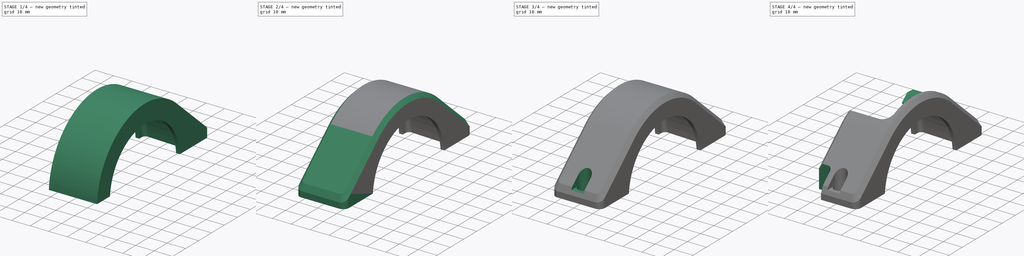
[diagram: build sequence overview — one tinted view per stage of 4, left to right]
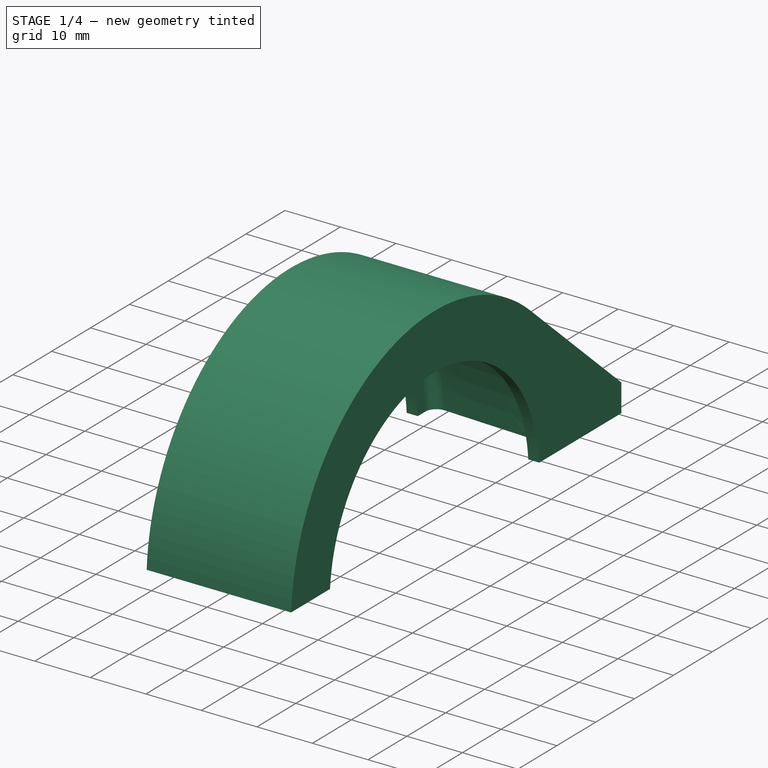
[diagram: stage 1 of 4 — iso view after this stage's code; geometry added in this stage tinted green]
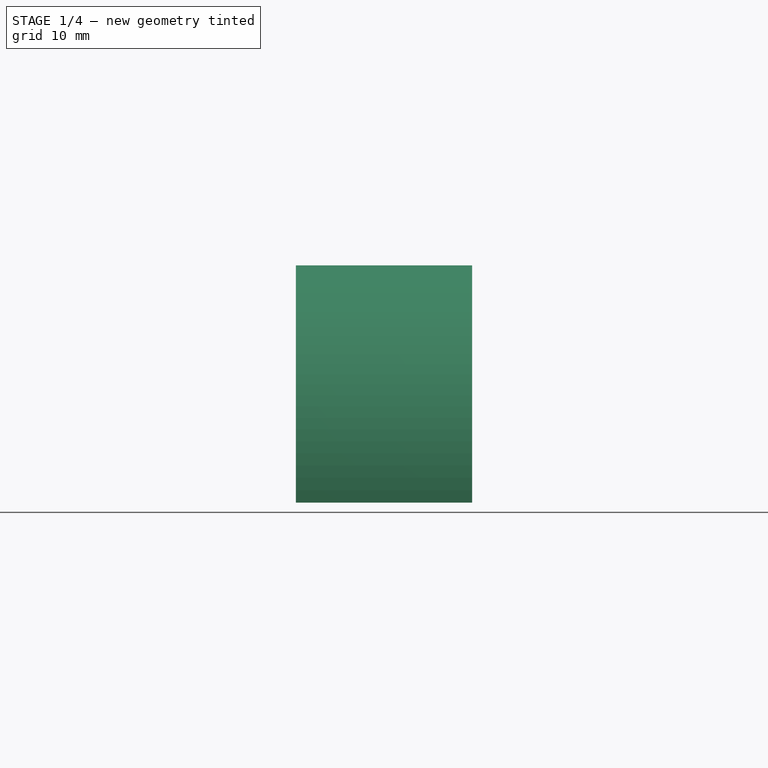
[diagram: stage 1 of 4 — front view after this stage's code; geometry added in this stage tinted green]
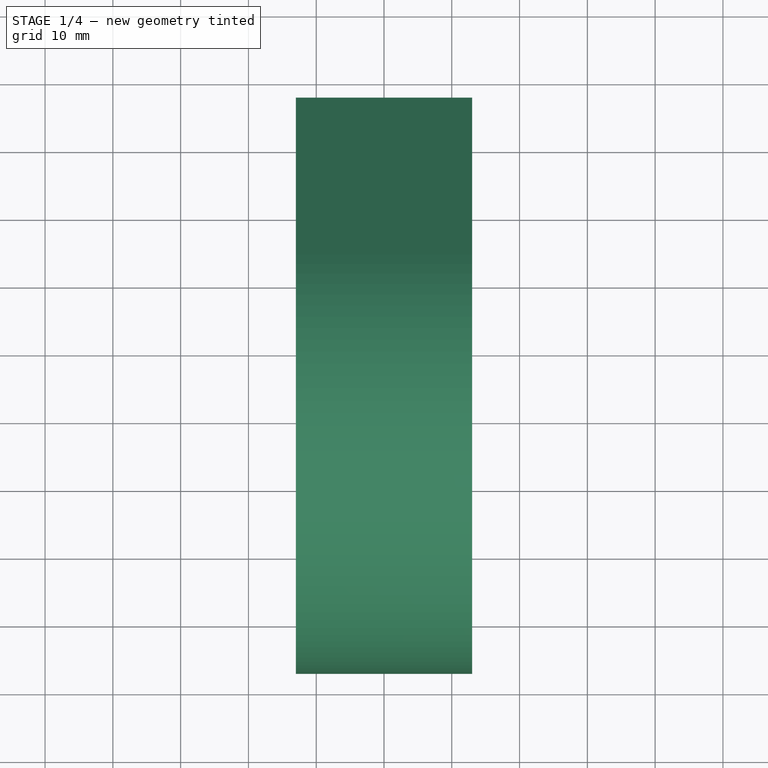
[diagram: stage 1 of 4 — top view after this stage's code; geometry added in this stage tinted green]
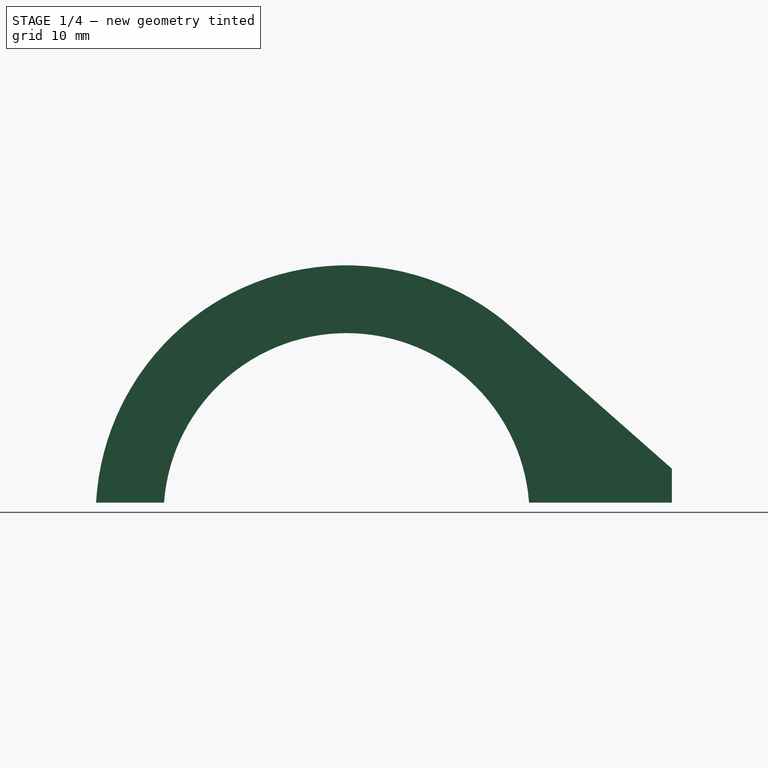
[diagram: stage 1 of 4 — right view after this stage's code; geometry added in this stage tinted green]
FCSTD DOCUMENT  (FreeCAD 1.0R39285 (Git))
Label: LowerPart
Comment: # 2025-11-12 09:51:29: read from None
License: All rights reserved
LicenseURL: https://en.wikipedia.org/wiki/All_rights_reserved
objects: Sketcher::SketchObject×8, PartDesign::Pocket×4, PartDesign::Fillet×2, PartDesign::Mirrored×2, Spreadsheet::Sheet×1, PartDesign::Revolution×1, PartDesign::Pad×1, PartDesign::Chamfer×1, PartDesign::Hole×1, PartDesign::Body×1
note: 51 computed .brp shape members not serialized (recipe doc carries the construction recipe); baked Part::Feature solids carry a one-line shape summary decoded from their .brp
EXTERNAL_REF file=MainDimensions.FCStd obj=Spreadsheet

FEATURE [Spreadsheet::Sheet] Parameters
  cells = A1='Parameter; B1='Value; C1='Fromula; D1='Tolerance; E1='Comment; A2='Outer_Diameter; B2(Outer_Diameter)=96; C2='96mm; A3='d0; B3(d0_)=66; C3='66mm; A4='d1; B4(d1_)=68; C4='68mm; A5='d10; B5(d10_)=4; C5='4mm; A6='d11; B6(d11_)=2; C6='2mm; A7='d15; B7(d15_)=180; C7='180°; A8='d16; B8(d16_)=26; C8='26mm; A9='d2; B9(d2_)=22; C9='22mm; A10='d3; B10(d3_)=2; C10='2mm; A11='d31; B11(d31_)=3; C11='3mm; A12='d33; B12(d33_)=2; C12='2mm; A13='d34; B13(d34_)=0; C13='0°; A14='d36; B14(d36_)=48; C14='48mm; A15='d37; B15(d37_)=5; C15='5mm; A16='d38; B16(d38_)=0; C16='0°; A17='d39; B17(d39_)=3.4; C17='3.4mm; A18='d4; B18(d4_)=6; C18='6mm; A19='d40; B19(d40_)=6; C19='6mm; A20='d41; B20(d41_)=6.5; C20='6.5mm; A21='d42; B21(d42_)=3.4; C21='3.4mm; A22='d43; B22(d43_)=82; C22='82°; A23='d44; B23(d44_)=8; C23='8mm; A24='d45; B24(d45_)=118; C24='118°; A25='d46; B25(d46_)=42; C25='42mm; A26='d47; B26(d47_)=5; C26='5mm; A27='d48; B27(d48_)=0; C27='0°; A28='d49; B28(d49_)=15; C28='15mm; A29='d50; B29(d50_)=0; C29='0°; A30='d51; B30(d51_)=3; C30='3mm; A31='d52; B31(d52_)=60; C31='60°; A32='d53; B32(d53_)=80; C32='80°; A33='d54; B33(d54_)=22; C33='22mm; A34='d55; B34(d55_)=0; C34='0°; A35='d56; B35(d56_)=2; C35='2mm; A36='d57; B36(d57_)=2; C36='2mm; A37='d58; B37(d58_)=45; C37='45°; A38='d59; B38(d59_)=5; C38='5mm; A39='d60; B39(d60_)=39.5; C39='39.5mm; A40='d61; B40(d61_)=7; C40='7mm; A41='d62; B41(d62_)=2; C41='2mm; A42='d63; B42(d63_)=22; C42='22mm; A43='d64; B43(d64_)=0; C43='0°; A44='d65; B44(d65_)=1; C44='1mm; A45='d66; B45(d66_)=3; C45='3mm; A46='d67; B46(d67_)=10; C46='10mm; A47='d68; B47(d68_)=0; C47='0°; A48='d7; B48(d7_)=2; C48='2mm; A49='d8; B49(d8_)=4; C49='4mm; A50='d9; B50(d9_)=3.5; C50='3.5mm
FEATURE [Sketcher::SketchObject] Sketch1
  ArcFitTolerance = 1e-06
  FullyConstrained = true
  MakeInternals = false
  expr: .Constraints.d11 = Parameters.d11_
  expr: .Constraints.d16 = <<MainDimensions>>#Spreadsheet.Width
  expr: .Constraints.d2 = Parameters.d2_
  expr: .Constraints.d3 = Parameters.d3_
  expr: .Constraints.d7 = Parameters.d7_
  expr: Constraints[26] = MainDimensions#Spreadsheet.Inner_Diameter_1 / 2
  expr: Constraints[33] = MainDimensions#Spreadsheet.Inner_Diameter_2 / 2
  sketch-geometry (14):
    g0: LineSegment StartX=-11 StartY=30 StartZ=0 EndX=-11 EndY=31.907 EndZ=0
    g1: LineSegment [constr] StartX=-11 StartY=34 StartZ=0 EndX=11 EndY=33 EndZ=0
    g2: LineSegment StartX=11 StartY=29 StartZ=0 EndX=11 EndY=27 EndZ=0
    g3: LineSegment StartX=11 StartY=27 StartZ=0 EndX=13 EndY=27 EndZ=0
    g4: LineSegment StartX=13 StartY=27 StartZ=0 EndX=13 EndY=37 EndZ=0
    g5: LineSegment StartX=-13 StartY=37 StartZ=0 EndX=-13 EndY=30 EndZ=0
    g6: LineSegment StartX=-13 StartY=30 StartZ=0 EndX=-11 EndY=30 EndZ=0
    g7: ArcOfCircle CenterX=-9 CenterY=31.907 CenterZ=0 NormalX=0 NormalY=0 NormalZ=1 AngleXU=0 Radius=2 StartAngle=1.52537 EndAngle=3.14159
    g8: LineSegment StartX=7 StartY=33.1818 StartZ=0 EndX=11 EndY=29 EndZ=0
    g9: LineSegment StartX=13 StartY=37 StartZ=0 EndX=-13 EndY=37 EndZ=0
    g10: GeomPoint [constr] X=-11 Y=34 Z=0
    g11: GeomPoint [constr] X=11 Y=33 Z=0
    g12: GeomPoint X=0 Y=37 Z=0
    g13: LineSegment StartX=-8.90918 StartY=33.905 StartZ=0 EndX=7 EndY=33.1818 EndZ=0
  constraints (37):
    c: Vertical(g0)
    c: Parallel(g0,g2)
    c: Perpendicular(g2,g3)
    c: Perpendicular(g3,g4)
    c: Vertical(g5)
    c: Perpendicular(g5,g6)
    c: Horizontal(g9)
    c: DistanceX(g1) = 22  'd2'
    c: Distance(g3) = 2  'd3'
    c: Radius(g7) = 2  'd7'
    c: Distance(g6) = 2  'd11'
    c: Distance(g4,g5) = 26  'd16'
    c: PointOnObject(g10,g0)
    c: PointOnObject(g11,g1)
    c: PointOnObject(g11,g2)
    c: Coincident(g5,g6)
    c: Coincident(g0,g6)
    c: Tangent(g0,g7) = 1.5708
    c: Tangent(g7,g1) = 1.5708
    c: Coincident(g1,g10)
    c: PointOnObject(g8,g1)
    c: Coincident(g2,g8)
    c: Coincident(g2,g3)
    c: Coincident(g3,g4)
    c: Coincident(g9,g4)
    c: Coincident(g5,g9)
    c: DistanceY(g-1,g1) = 33
    c: Symmetric(g9,g9,g12)
    c: DistanceY(g1,g5) = 3
    c: Distance(g1,g6) = 4
    c: Distance(g1,g3) = 6
    c: DistanceY(g2,g1) = 4
    c: DistanceX(g8,g1) = 4
    c: DistanceY(g-1,g1) = 34
    c: Vertical(g12,g-1)
    c: Coincident(g13,g7)
    c: Coincident(g13,g8)
FEATURE [Sketcher::SketchObject] Sketch5
  ArcFitTolerance = 1e-06
  FullyConstrained = true
  MakeInternals = false
  Placement = pos=(0,0,0) rot=(0,1,0;3.14159rad)
  expr: .Placement.Base.x = 0
  expr: Constraints[10] = MainDimensions#Spreadsheet.Outer_Diameter
  expr: Constraints[11] = MainDimensions#Spreadsheet.Width
  sketch-geometry (5):
    g0: LineSegment StartX=13 StartY=-48 StartZ=0 EndX=13 EndY=48 EndZ=0
    g1: LineSegment StartX=13 StartY=48 StartZ=0 EndX=-13 EndY=48 EndZ=0
    g2: LineSegment StartX=-13 StartY=48 StartZ=0 EndX=-13 EndY=-48 EndZ=0
    g3: LineSegment StartX=-13 StartY=-48 StartZ=0 EndX=13 EndY=-48 EndZ=0
    g4: GeomPoint [constr] X=0 Y=0 Z=0
  constraints (12):
    c: Coincident(g0,g1)
    c: Coincident(g1,g2)
    c: Coincident(g2,g3)
    c: Coincident(g3,g0)
    c: Vertical(g0)
    c: Vertical(g2)
    c: Horizontal(g1)
    c: Horizontal(g3)
    c: Symmetric(g2,g0,g4)
    c: Coincident(g4,g-1)
    c: DistanceY(g2,g2) = 96
    c: DistanceX(g1,g1) = 26
FEATURE [Sketcher::SketchObject] Sketch7
  ArcFitTolerance = 1e-06
  FullyConstrained = true
  MakeInternals = false
  Placement = pos=(0,48,20) rot=(0,0,1;0rad)
  expr: .Placement.Base.y = MainDimensions#Spreadsheet.Outer_Diameter / 2
  sketch-geometry (1):
    g0: Circle CenterX=0 CenterY=-6 CenterZ=0 NormalX=0 NormalY=0 NormalZ=1 AngleXU=0 Radius=2
  constraints (3):
    c: PointOnObject(g0,g-2)
    c: DistanceY(g0,g-1) = 6
    c: Diameter(g0) = 4
FEATURE [Sketcher::SketchObject] Sketch9
  ArcFitTolerance = 1e-06
  FullyConstrained = false
  MakeInternals = false
  Placement = pos=(11,42,3.6) rot=(0,0,1;0rad)
  sketch-geometry (1):
    g0: Circle [constr] CenterX=0 CenterY=0 CenterZ=0 NormalX=0 NormalY=0 NormalZ=1 AngleXU=0 Radius=3.25
FEATURE [Sketcher::SketchObject] Sketch10
  ArcFitTolerance = 1e-06
  FullyConstrained = true
  MakeInternals = false
  Placement = pos=(0,0,0) rot=(0,-1,0;1.5708rad)
  sketch-geometry (3):
    g0: LineSegment StartX=0 StartY=0 StartZ=0 EndX=51.423 EndY=61.2836 EndZ=0
    g1: LineSegment StartX=51.423 StartY=61.2836 StartZ=0 EndX=69.282 EndY=-40 EndZ=0
    g2: LineSegment StartX=69.282 StartY=-40 StartZ=0 EndX=0 EndY=0 EndZ=0
  constraints (8):
    c: Coincident(g0,g-1)
    c: Coincident(g1,g0)
    c: Coincident(g2,g1)
    c: Coincident(g2,g0)
    c: Angle(g-2,g2) = 1.0472
    c: Angle(g2,g0) = 1.39626
    c: Distance(g0,g0) = 80
    c: Equal(g2,g0)
FEATURE [Sketcher::SketchObject] Sketch11
  ArcFitTolerance = 1e-06
  FullyConstrained = true
  MakeInternals = false
  Placement = pos=(0,-48,2) rot=(0,1,0;3.14159rad)
  expr: .Constraints.d62 = Parameters.d62_
  expr: .Placement.Base.y = -MainDimensions#Spreadsheet.Outer_Diameter / 2
  sketch-geometry (6):
    g0: LineSegment StartX=6 StartY=0 StartZ=0 EndX=6 EndY=6.5 EndZ=0
    g1: LineSegment StartX=8 StartY=8.5 StartZ=0 EndX=13 EndY=8.5 EndZ=0
    g2: ArcOfCircle CenterX=8 CenterY=6.5 CenterZ=0 NormalX=0 NormalY=0 NormalZ=1 AngleXU=0 Radius=2 StartAngle=1.5708 EndAngle=3.14159
    g3: LineSegment StartX=6 StartY=0 StartZ=0 EndX=10 EndY=0 EndZ=0
    g4: LineSegment StartX=13 StartY=3 StartZ=0 EndX=13 EndY=8.5 EndZ=0
    g5: ArcOfCircle CenterX=10 CenterY=3 CenterZ=0 NormalX=0 NormalY=0 NormalZ=1 AngleXU=0 Radius=3 StartAngle=4.71239 EndAngle=6.28319
  constraints (16):
    c: Vertical(g0)
    c: Radius(g2) = 2  'd62'
    c: PointOnObject(g1,g-5)
    c: Tangent(g2,g1) = 1.5708
    c: Tangent(g2,g0) = 1.5708
    c: PointOnObject(g0,g-3)
    c: Horizontal(g1)
    c: Distance(g-5,g0) = 7
    c: Distance(g-1,g1) = 8.5
    c: Coincident(g5,g4)
    c: Coincident(g5,g3)
    c: Coincident(g3,g-4)
    c: Coincident(g4,g-5)
    c: Equal(g-4,g5)
    c: Coincident(g3,g0)
    c: Coincident(g4,g1)
FEATURE [PartDesign::Revolution] Revolution
  Angle = 180
  Angle2 = 60
  Axis = (1,0,0)
  Base = (0,0,0)
  Profile = -> Sketch1
  ReferenceAxis = -> Sketch1 [H_Axis]
  Refine = true
  Suppressed = false
  Type = 0
FEATURE [PartDesign::Pocket] Pocket
  BaseFeature = -> Revolution
  Direction = (-1e-16,0,1)
  Length = 2
  Length2 = 5
  Profile = -> Sketch5
  ReferenceAxis = -> Sketch5 [N_Axis]
  Refine = true
  Suppressed = false
  Type = 0
FEATURE [Sketcher::SketchObject] Sketch8
  ArcFitTolerance = 1e-06
  ExternalGeometry = -> [Pocket]
  FullyConstrained = true
  MakeInternals = false
  Placement = pos=(0,0,0) rot=(0,-1,0;1.5708rad)
  expr: Constraints[7] = MainDimensions#Spreadsheet.Outer_Diameter / 2
  sketch-geometry (4):
    g0: LineSegment StartX=7 StartY=48 StartZ=0 EndX=27.7492 EndY=24.4741 EndZ=0
    g1: LineSegment StartX=7 StartY=48 StartZ=0 EndX=2 EndY=48 EndZ=0
    g2: LineSegment StartX=2 StartY=48 StartZ=0 EndX=2 EndY=36.9459 EndZ=0
    g3: ArcOfCircle CenterX=-2.5e-15 CenterY=-7e-16 CenterZ=0 NormalX=0 NormalY=0 NormalZ=1 AngleXU=0 Radius=37 StartAngle=0.722766 EndAngle=1.51672
  constraints (11):
    c: Coincident(g1,g0)
    c: Horizontal(g1)
    c: Coincident(g2,g1)
    c: Vertical(g2)
    c: Coincident(g3,g-3)
    c: PointOnObject(g0,g-3)
    c: Equal(g-3,g3)
    c: Distance(g3,g1) = 48
    c: DistanceX(g1,g1) = 5
    c: Coincident(g2,g3)
    c: Tangent(g3,g0) = 1.5708
FEATURE [PartDesign::Pad] Pad
  BaseFeature = -> Pocket
  Direction = (-1,0,0)
  Length = 26
  Length2 = 10
  Midplane = true
  Profile = -> Sketch8
  ReferenceAxis = -> Sketch8 [N_Axis]
  Refine = true
  Suppressed = false
  Type = 0
  expr: Length = MainDimensions#Spreadsheet.Width
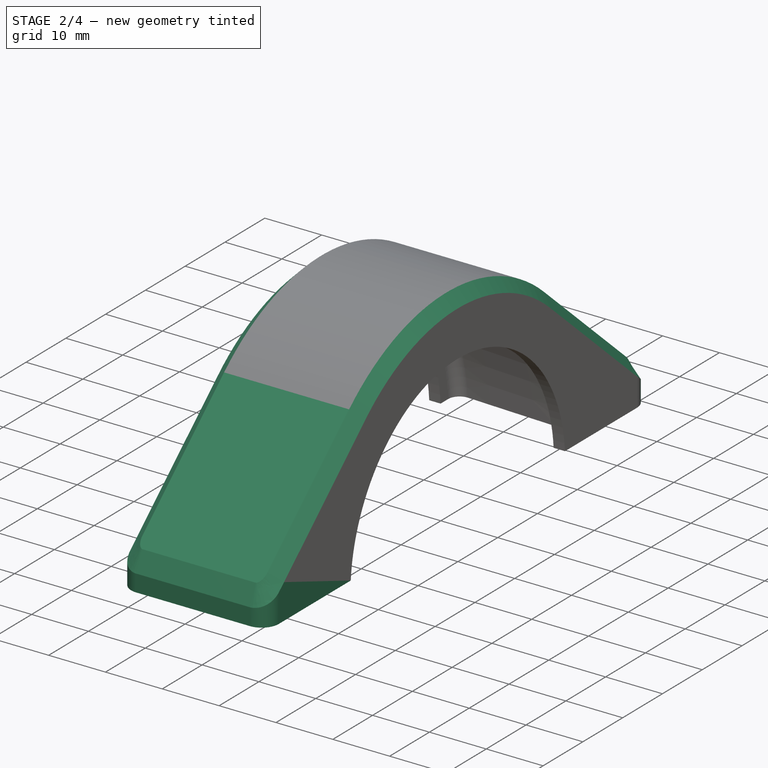
[diagram: stage 2 of 4 — iso view after this stage's code; geometry added in this stage tinted green]
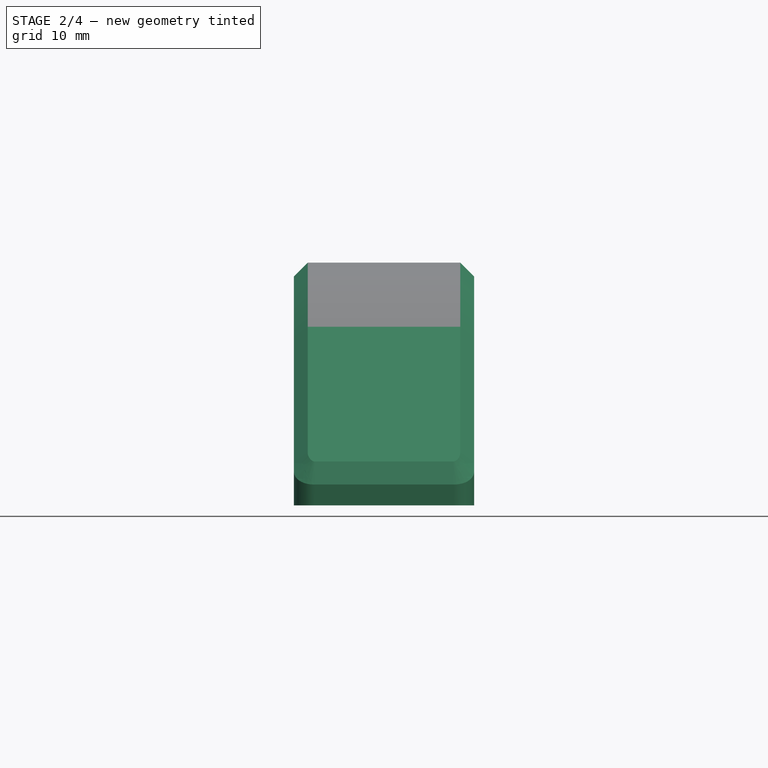
[diagram: stage 2 of 4 — front view after this stage's code; geometry added in this stage tinted green]
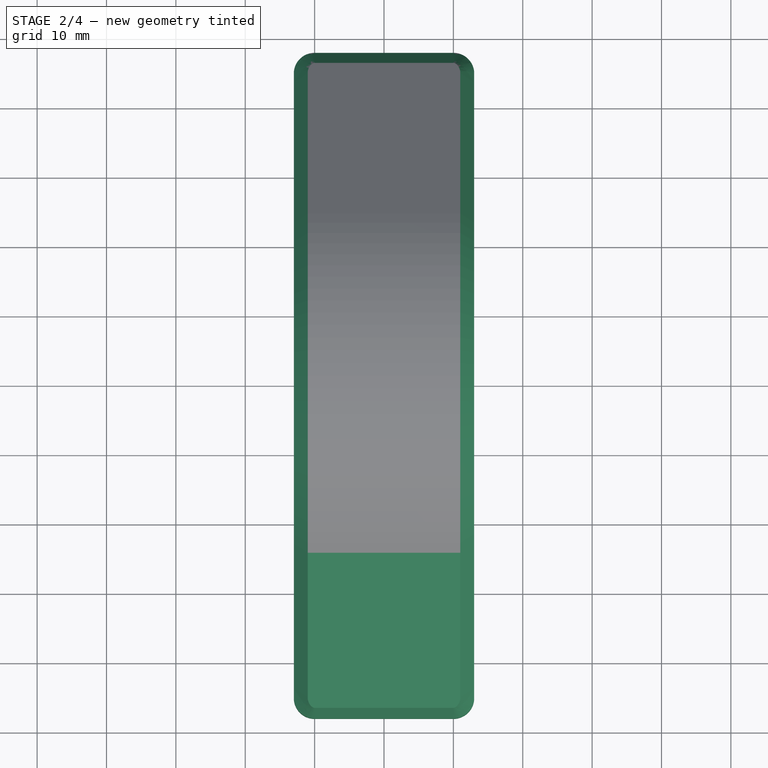
[diagram: stage 2 of 4 — top view after this stage's code; geometry added in this stage tinted green]
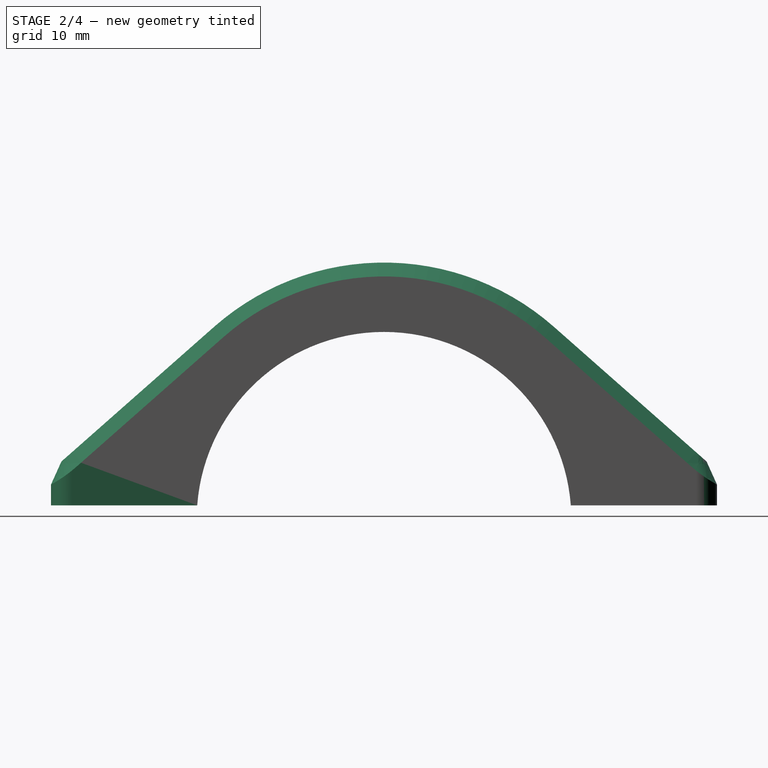
[diagram: stage 2 of 4 — right view after this stage's code; geometry added in this stage tinted green]
FEATURE [PartDesign::Fillet] Fillet
  Base = -> Pad [Edge4,Edge3]
  BaseFeature = -> Pad
  Radius = 3
  Refine = true
  SupportTransform = false
  Suppressed = false
  UseAllEdges = false
FEATURE [PartDesign::Mirrored] Mirrored
  BaseFeature = -> Fillet
  MirrorPlane = -> XZ_Plane
  Originals = -> [Pad,Fillet]
  Refine = true
  Suppressed = false
  TransformMode = 0
FEATURE [PartDesign::Chamfer] Chamfer
  Angle = 45
  Base = -> Mirrored [Edge8]
  BaseFeature = -> Mirrored
  ChamferType = 0
  FlipDirection = false
  Refine = true
  Size = 2
  Size2 = 1
  SupportTransform = false
  Suppressed = false
  UseAllEdges = false
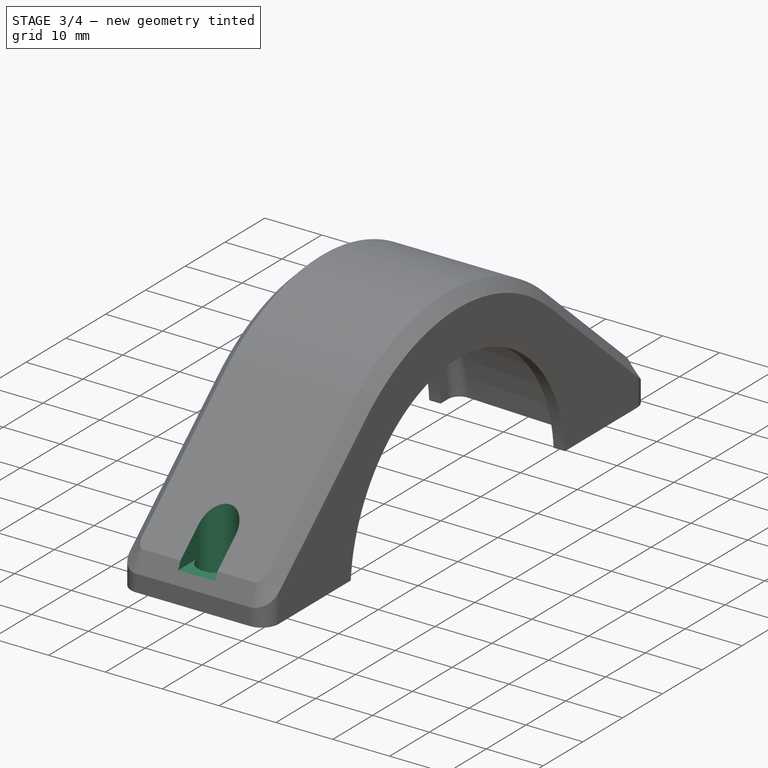
[diagram: stage 3 of 4 — iso view after this stage's code; geometry added in this stage tinted green]
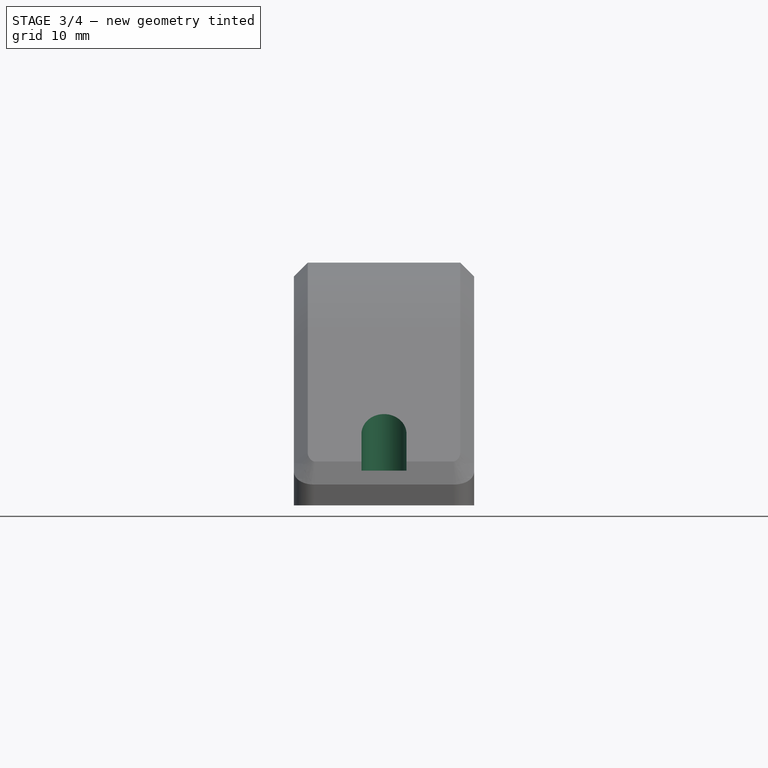
[diagram: stage 3 of 4 — front view after this stage's code; geometry added in this stage tinted green]
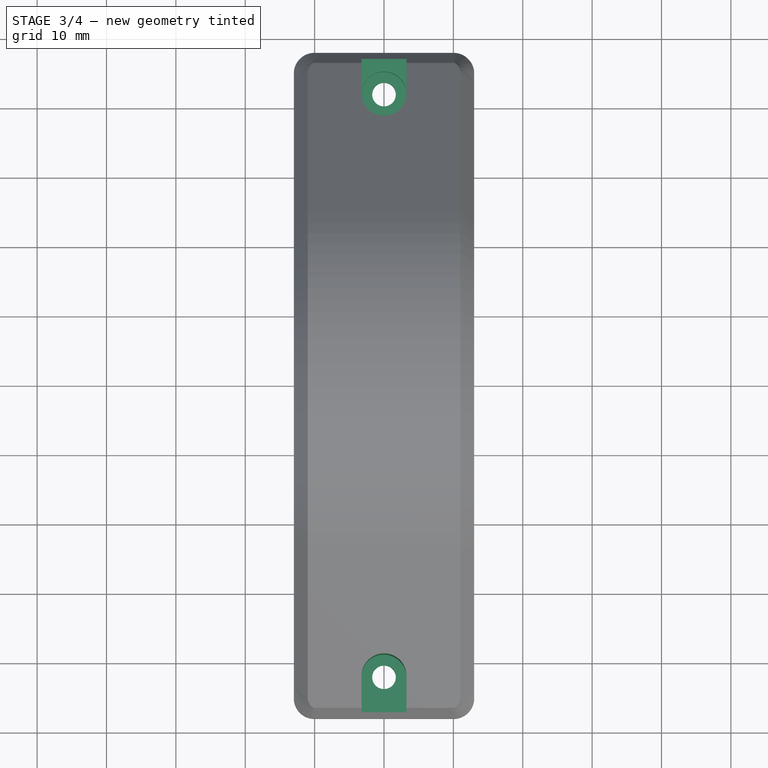
[diagram: stage 3 of 4 — top view after this stage's code; geometry added in this stage tinted green]
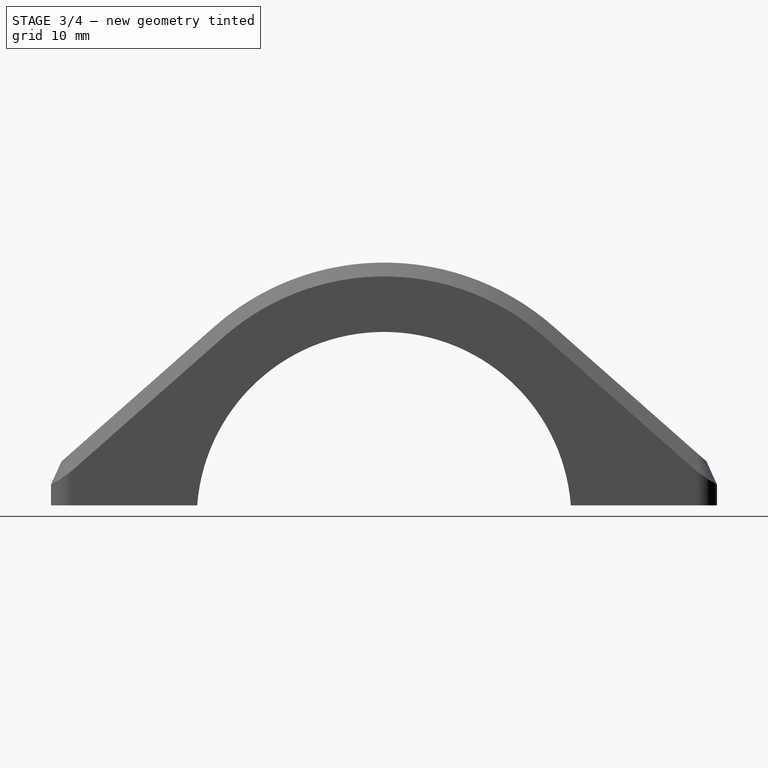
[diagram: stage 3 of 4 — right view after this stage's code; geometry added in this stage tinted green]
FEATURE [PartDesign::Hole] Hole
  BaseFeature = -> Chamfer
  CustomThreadClearance = 0
  Depth = 25
  DepthType = 0
  Diameter = 3.4
  DrillForDepth = false
  DrillPoint = 1
  DrillPointAngle = 118
  HoleCutCountersinkAngle = 90
  HoleCutCustomValues = false
  HoleCutDepth = 16.4
  HoleCutDiameter = 6.5
  HoleCutType = 1
  ModelThread = false
  Profile = -> Sketch7
  Refine = true
  Suppressed = false
  Tapered = false
  TaperedAngle = 90
  ThreadClass = 0
  ThreadDepth = 25
  ThreadDepthType = 0
  ThreadDirection = 0
  ThreadFit = 0
  ThreadSize = 0
  ThreadType = 0
  Threaded = false
  UseCustomThreadClearance = false
FEATURE [Sketcher::SketchObject] Sketch13
  ArcFitTolerance = 1e-06
  ExternalGeometry = -> [Hole]
  FullyConstrained = true
  MakeInternals = false
  Placement = pos=(0,48,7) rot=(0,0,1;0rad)
  expr: .Placement.Base.y = MainDimensions#Spreadsheet.Outer_Diameter / 2
  sketch-geometry (4):
    g0: LineSegment StartX=3.25 StartY=0 StartZ=0 EndX=3.25 EndY=-6 EndZ=0
    g1: LineSegment StartX=-3.25 StartY=0 StartZ=0 EndX=-3.25 EndY=-6 EndZ=0
    g2: LineSegment StartX=-3.25 StartY=0 StartZ=0 EndX=3.25 EndY=0 EndZ=0
    g3: LineSegment StartX=3.25 StartY=-6 StartZ=0 EndX=-3.25 EndY=-6 EndZ=0
  constraints (10):
    c: Vertical(g0)
    c: Vertical(g1)
    c: Tangent(g1,g-3) = -1.5708
    c: Tangent(g0,g-3) = 1.5708
    c: PointOnObject(g1,g-1)
    c: PointOnObject(g0,g-1)
    c: Coincident(g2,g1)
    c: Coincident(g2,g0)
    c: Coincident(g3,g0)
    c: Coincident(g3,g1)
FEATURE [PartDesign::Pocket] Pocket001
  BaseFeature = -> Hole
  Direction = (0,0,-1)
  Length = 10
  Length2 = 5
  Profile = -> Sketch13
  ReferenceAxis = -> Sketch13 [N_Axis]
  Refine = true
  Reversed = true
  Suppressed = false
  Type = 0
FEATURE [PartDesign::Mirrored] Mirrored001
  BaseFeature = -> Pocket001
  MirrorPlane = -> XZ_Plane
  Originals = -> [Pocket001,Hole]
  Refine = true
  Suppressed = false
  TransformMode = 0
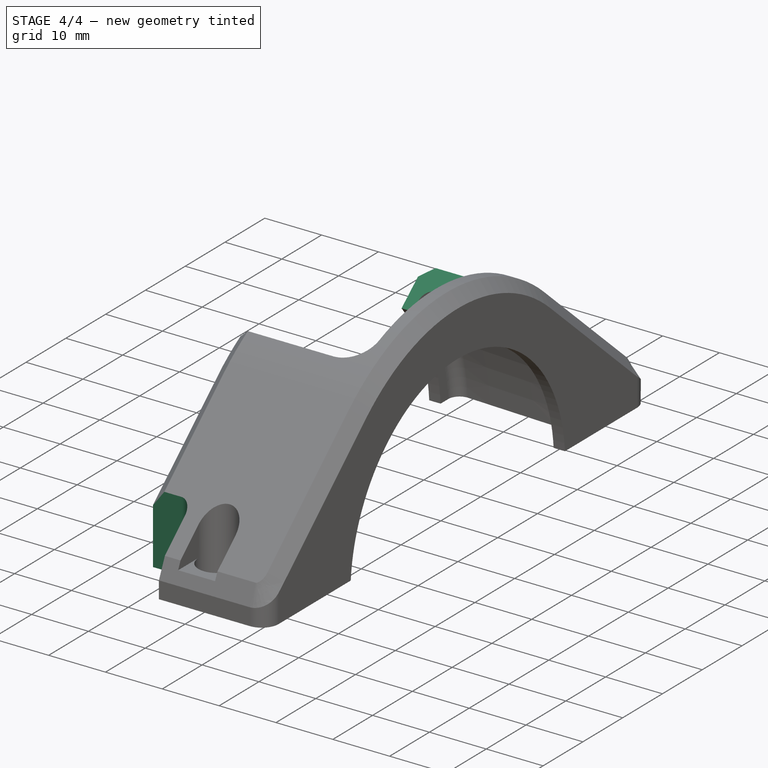
[diagram: stage 4 of 4 — iso view after this stage's code; geometry added in this stage tinted green]
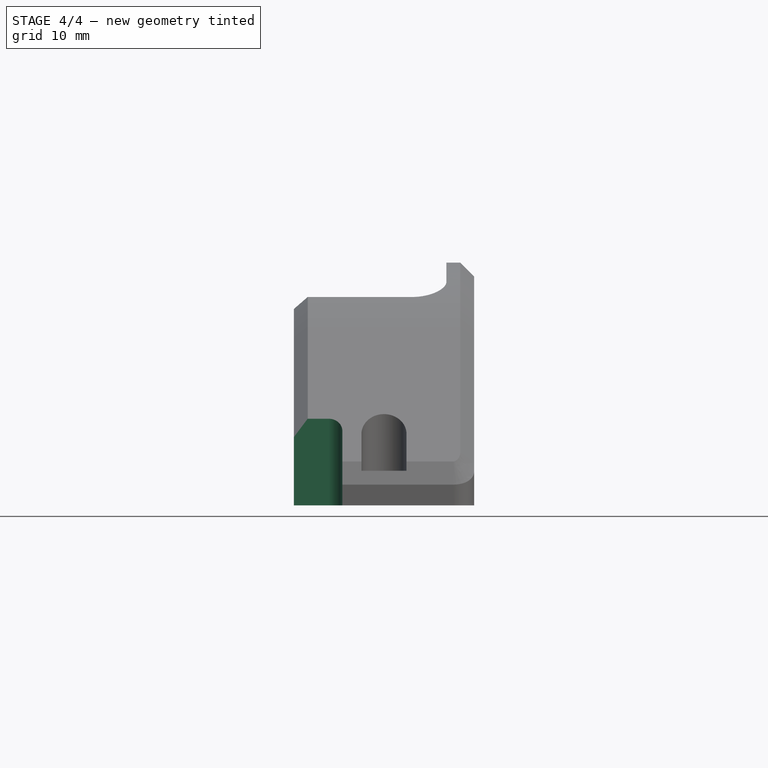
[diagram: stage 4 of 4 — front view after this stage's code; geometry added in this stage tinted green]
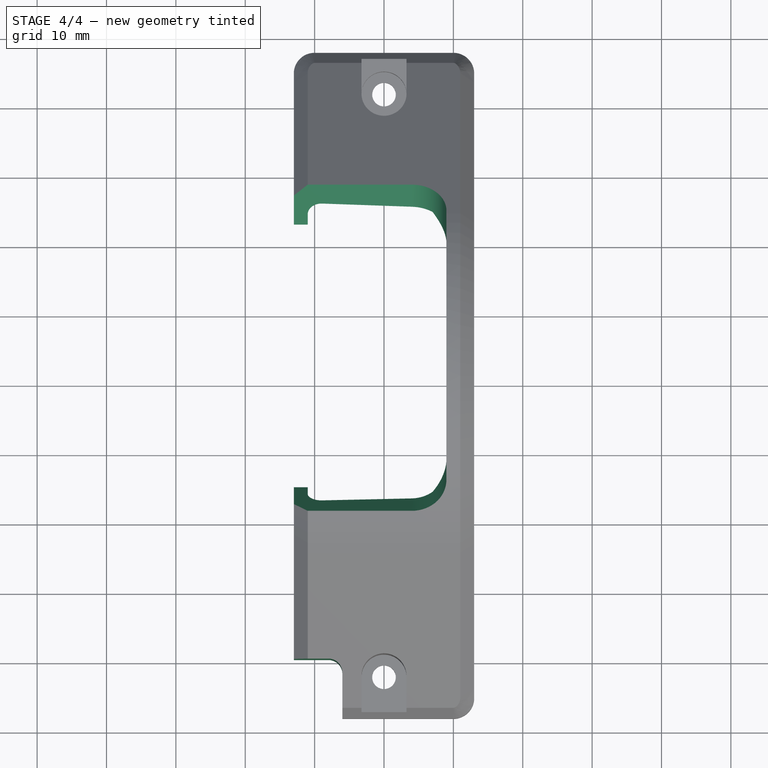
[diagram: stage 4 of 4 — top view after this stage's code; geometry added in this stage tinted green]
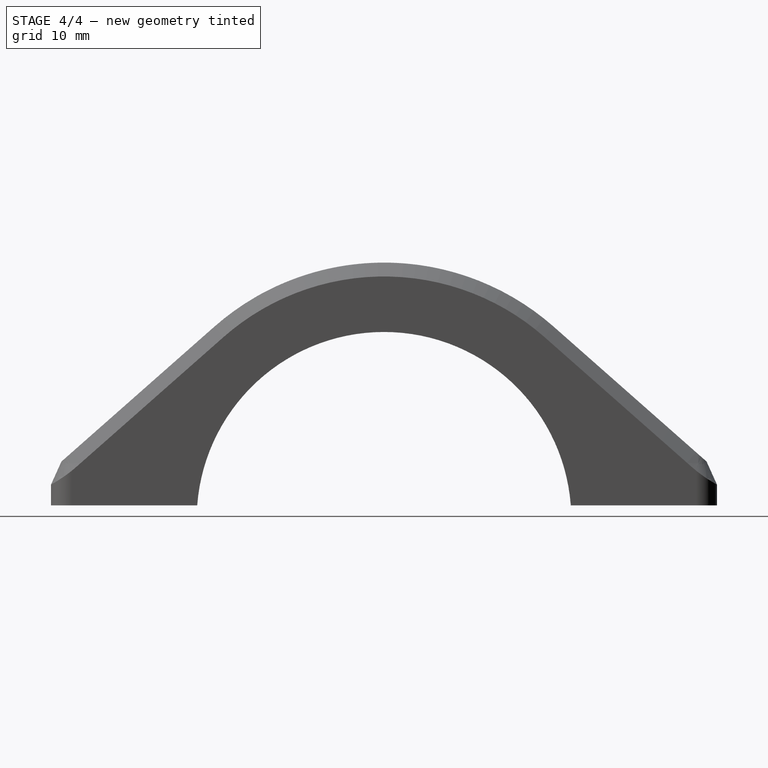
[diagram: stage 4 of 4 — right view after this stage's code; geometry added in this stage tinted green]
FEATURE [PartDesign::Pocket] Pocket002
  BaseFeature = -> Mirrored001
  Direction = (1,0,0)
  Length = 13
  Length2 = 9
  Profile = -> Sketch10
  ReferenceAxis = -> Sketch10 [N_Axis]
  Refine = true
  Reversed = true
  Suppressed = false
  Type = 4
FEATURE [PartDesign::Fillet] Fillet001
  Base = -> Pocket002 [Edge103,Edge102]
  BaseFeature = -> Pocket002
  Radius = 5
  Refine = true
  SupportTransform = false
  Suppressed = false
  UseAllEdges = false
FEATURE [PartDesign::Pocket] Pocket003
  BaseFeature = -> Fillet001
  Direction = (-1e-16,0,1)
  Length = 20
  Length2 = 5
  Profile = -> Sketch11
  ReferenceAxis = -> Sketch11 [N_Axis]
  Refine = true
  Suppressed = false
  Type = 0
FEATURE [PartDesign::Body] Body_0  label="LowerPart"
  AllowCompound = false
  Group = -> [Sketch8,Sketch9,Sketch10,Sketch11,Sketch13,Sketch1,Revolution,Sketch5,Pocket,Pad,Sketch7,Fillet,Mirrored,Chamfer,Hole,Pocket001,Mirrored001,Pocket002,Fillet001,Pocket003]
  Origin = -> Origin
  Tip = -> Pocket003
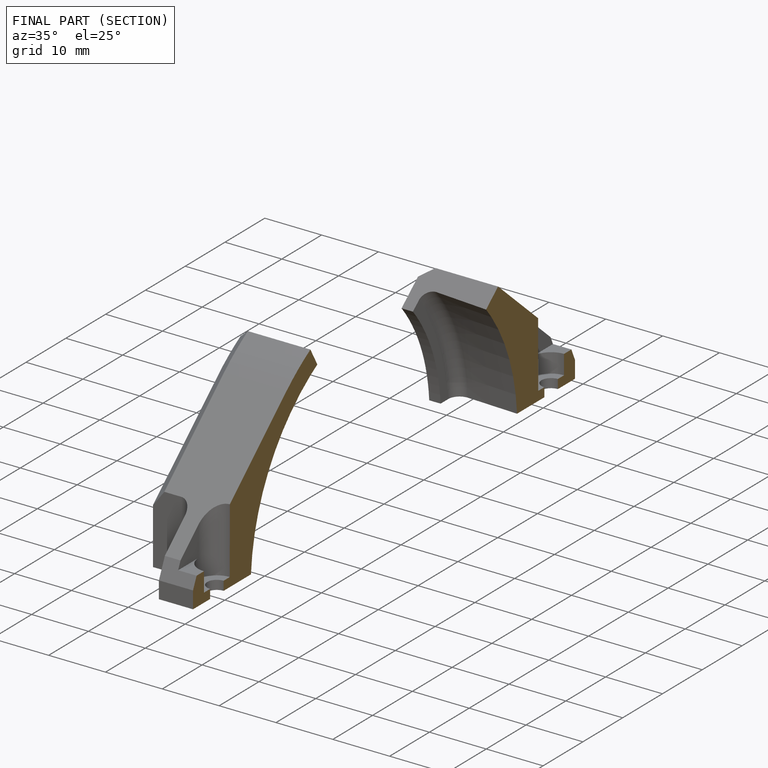
[diagram: finished part — half-section view (interior)]
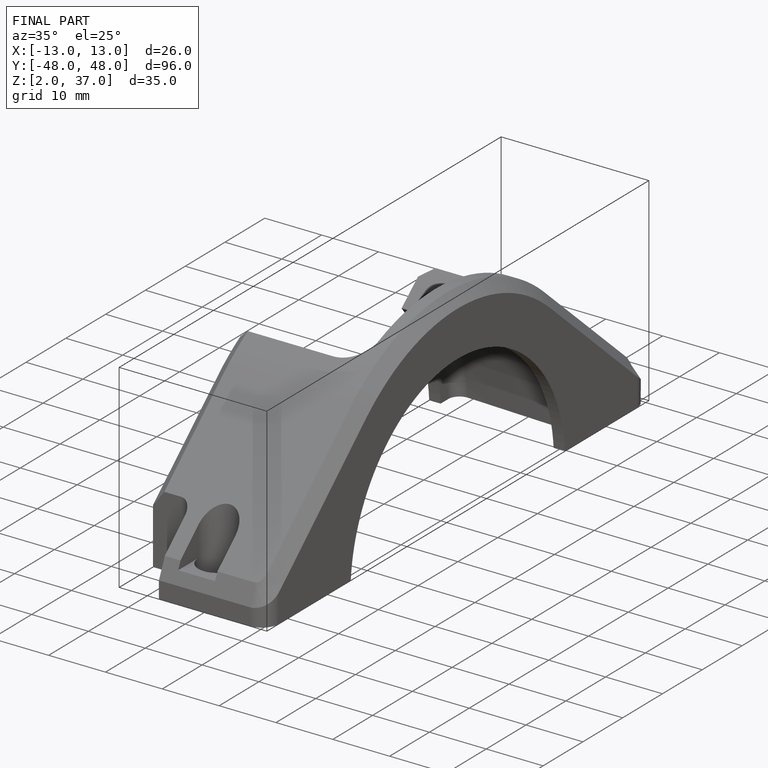
[diagram: finished part — iso view with bounding-box wireframe]
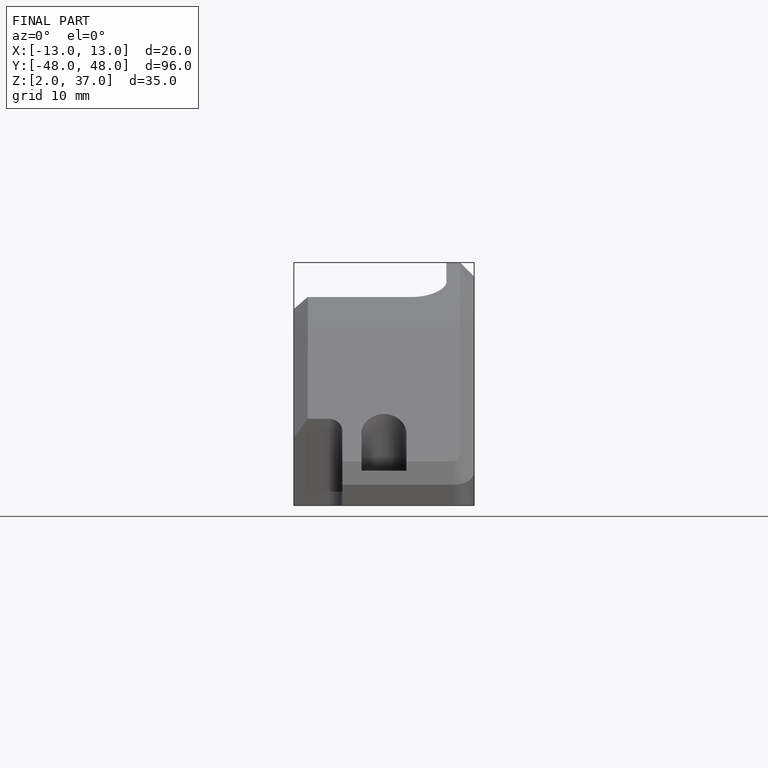
[diagram: finished part — front view with bounding-box wireframe]
